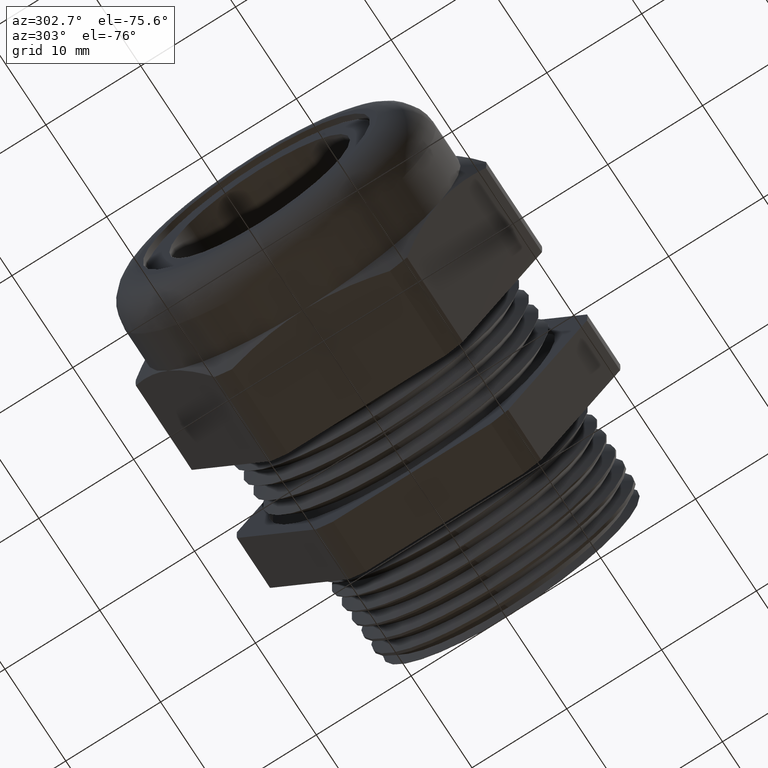
[diagram: clean part render]
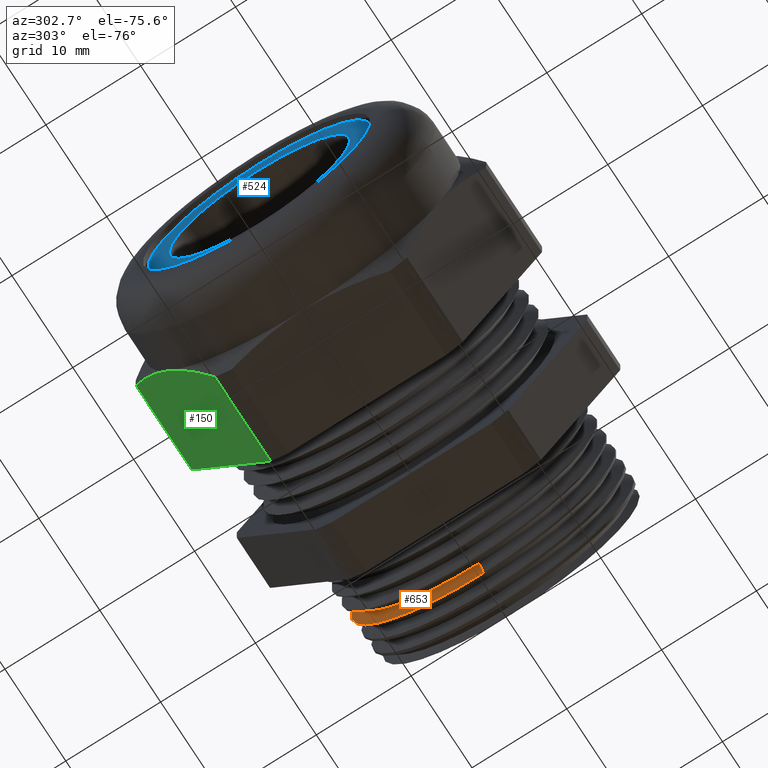
[diagram: same view with three faces highlighted in distinct colors, each labeled with its STEP entity id]
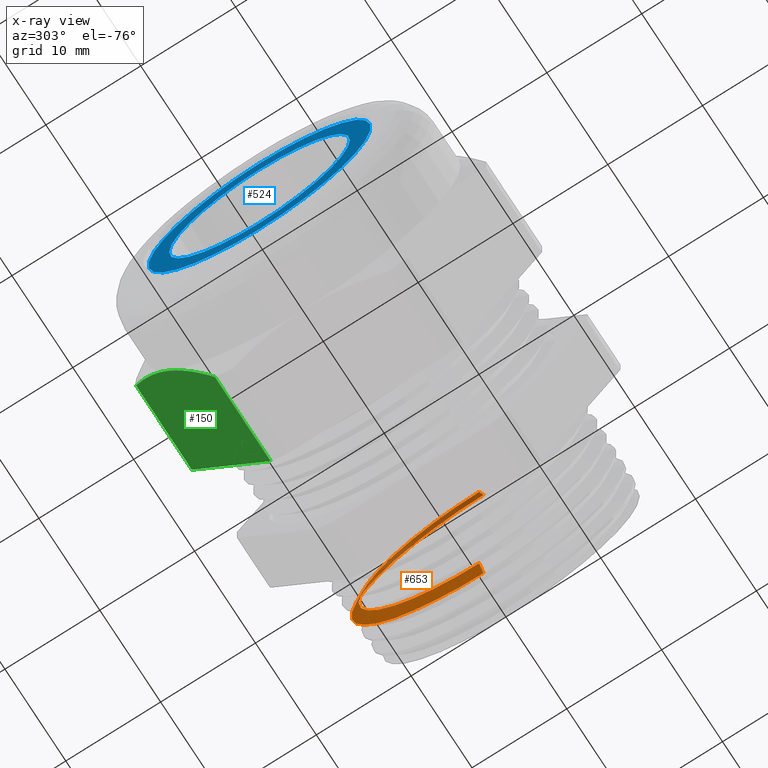
[diagram: x-ray of the same camera — body ghosted, the three highlighted faces saturated]
A machine part, auxiliary view with three faces highlighted in distinct colors.
The next image is the same camera in x-ray (body ghosted, the three faces saturated) — at least one of them is partly hidden behind the body in this view.
Their STEP definitions:

[orange] entity #653 — the highlighted conical surface has half-angle 60 deg.
#653 = ADVANCED_FACE ( 'NONE', ( #2206 ), #2205, .T. ) ;
#654 = EDGE_LOOP ( 'NONE', ( #655, #659, #690, #780 ) ) ;
#655 = ORIENTED_EDGE ( 'NONE', *, *, #656, .F. ) ;
#656 = EDGE_CURVE ( 'NONE', #657, #658, #2204, .T. ) ;
#657 = VERTEX_POINT ( 'NONE', #2258 ) ;
#658 = VERTEX_POINT ( 'NONE', #2257 ) ;
#659 = ORIENTED_EDGE ( 'NONE', *, *, #689, .T. ) ;
#660 = VERTEX_POINT ( 'NONE', #2256 ) ;
#689 = EDGE_CURVE ( 'NONE', #657, #660, #2326, .T. ) ;
#690 = ORIENTED_EDGE ( 'NONE', *, *, #691, .T. ) ;
#691 = EDGE_CURVE ( 'NONE', #660, #692, #2322, .T. ) ;
#692 = VERTEX_POINT ( 'NONE', #2317 ) ;
#780 = ORIENTED_EDGE ( 'NONE', *, *, #791, .F. ) ;
#791 = EDGE_CURVE ( 'NONE', #658, #692, #2453, .T. ) ;
#2198 = CARTESIAN_POINT ( 'NONE',  ( 0.2204866412847641400, 0.0000000000000000000, 0.0000000000000000000 ) ) ;
#2199 = AXIS2_PLACEMENT_3D ( 'NONE', #2198, #2260, #2259 ) ;
#2200 = DIRECTION ( 'NONE',  ( 0.0000000000000000000, 0.0000000000000000000, -1.000000000000000000 ) ) ;
#2201 = DIRECTION ( 'NONE',  ( 1.000000000000000000, 0.0000000000000000000, 0.0000000000000000000 ) ) ;
#2202 = CARTESIAN_POINT ( 'NONE',  ( 0.2204866412847641400, 0.0000000000000000000, 0.0000000000000000000 ) ) ;
#2203 = AXIS2_PLACEMENT_3D ( 'NONE', #2202, #2201, #2200 ) ;
#2204 = CIRCLE ( 'NONE', #2199, 0.5004635375350919800 ) ;
#2205 = CONICAL_SURFACE ( 'NONE', #2203, 0.5004635375350919800, 1.047197551196596500 ) ;
#2206 = FACE_OUTER_BOUND ( 'NONE', #654, .T. ) ;
#2256 = CARTESIAN_POINT ( 'NONE',  ( 0.2482205725359209200, 0.0000000000000000000, 0.5485001155557157600 ) ) ;
#2257 = CARTESIAN_POINT ( 'NONE',  ( 0.2204866412847641400, 6.432080283413133600E-017, -0.5004635375350919800 ) ) ;
#2258 = CARTESIAN_POINT ( 'NONE',  ( 0.2204866412847641400, 0.0000000000000000000, 0.5004635375350919800 ) ) ;
#2259 = DIRECTION ( 'NONE',  ( 0.0000000000000000000, 0.0000000000000000000, 1.000000000000000000 ) ) ;
#2260 = DIRECTION ( 'NONE',  ( -1.000000000000000000, 0.0000000000000000000, 0.0000000000000000000 ) ) ;
#2317 = CARTESIAN_POINT ( 'NONE',  ( 0.2482205725359209200, 6.717189108472605500E-017, -0.5485001155557157600 ) ) ;
#2318 = DIRECTION ( 'NONE',  ( 0.0000000000000000000, 0.0000000000000000000, -1.000000000000000000 ) ) ;
#2319 = DIRECTION ( 'NONE',  ( -1.000000000000000000, 0.0000000000000000000, 0.0000000000000000000 ) ) ;
#2320 = CARTESIAN_POINT ( 'NONE',  ( 0.2482205725359209200, 0.0000000000000000000, 0.0000000000000000000 ) ) ;
#2321 = AXIS2_PLACEMENT_3D ( 'NONE', #2320, #2319, #2318 ) ;
#2322 = CIRCLE ( 'NONE', #2321, 0.5485001155557156500 ) ;
#2323 = DIRECTION ( 'NONE',  ( 0.5000000000000010000, 1.060575238724906100E-016, 0.8660254037844379300 ) ) ;
#2324 = VECTOR ( 'NONE', #2323, 39.37007874015748900 ) ;
#2325 = CARTESIAN_POINT ( 'NONE',  ( 0.2204866412847641400, 6.128910693323116700E-017, 0.5004635375350919800 ) ) ;
#2326 = LINE ( 'NONE', #2325, #2324 ) ;
#2452 = CARTESIAN_POINT ( 'NONE',  ( 0.2204866412847641400, 0.0000000000000000000, -0.5004635375350919800 ) ) ;
#2453 = LINE ( 'NONE', #2452, #2513 ) ;
#2512 = DIRECTION ( 'NONE',  ( 0.5000000000000010000, 0.0000000000000000000, -0.8660254037844379300 ) ) ;
#2513 = VECTOR ( 'NONE', #2512, 39.37007874015748900 ) ;

[blue] entity #524 — the highlighted planar face has unit normal (-1, 0, 0).
#512 = VERTEX_POINT ( 'NONE', #1966 ) ;
#524 = ADVANCED_FACE ( 'NONE', ( #1953, #1952 ), #1958, .T. ) ;
#525 = EDGE_LOOP ( 'NONE', ( #526, #527 ) ) ;
#526 = ORIENTED_EDGE ( 'NONE', *, *, #552, .T. ) ;
#527 = ORIENTED_EDGE ( 'NONE', *, *, #528, .T. ) ;
#528 = EDGE_CURVE ( 'NONE', #512, #553, #1947, .T. ) ;
#529 = EDGE_LOOP ( 'NONE', ( #530, #531 ) ) ;
#530 = ORIENTED_EDGE ( 'NONE', *, *, #579, .T. ) ;
#531 = ORIENTED_EDGE ( 'NONE', *, *, #620, .T. ) ;
#552 = EDGE_CURVE ( 'NONE', #553, #512, #2031, .T. ) ;
#553 = VERTEX_POINT ( 'NONE', #2026 ) ;
#579 = EDGE_CURVE ( 'NONE', #622, #621, #2045, .T. ) ;
#620 = EDGE_CURVE ( 'NONE', #621, #622, #2150, .T. ) ;
#621 = VERTEX_POINT ( 'NONE', #2141 ) ;
#622 = VERTEX_POINT ( 'NONE', #2140 ) ;
#1943 = DIRECTION ( 'NONE',  ( 0.0000000000000000000, 0.0000000000000000000, 1.000000000000000000 ) ) ;
#1944 = DIRECTION ( 'NONE',  ( -1.000000000000000000, 0.0000000000000000000, 0.0000000000000000000 ) ) ;
#1945 = CARTESIAN_POINT ( 'NONE',  ( -1.200000000000000000, 0.0000000000000000000, 0.0000000000000000000 ) ) ;
#1946 = AXIS2_PLACEMENT_3D ( 'NONE', #1945, #1944, #1943 ) ;
#1947 = CIRCLE ( 'NONE', #1946, 0.4617500000000000500 ) ;
#1948 = DIRECTION ( 'NONE',  ( 0.0000000000000000000, 0.0000000000000000000, 1.000000000000000000 ) ) ;
#1949 = DIRECTION ( 'NONE',  ( -1.000000000000000000, 0.0000000000000000000, 0.0000000000000000000 ) ) ;
#1950 = CARTESIAN_POINT ( 'NONE',  ( -1.200000000000000000, 0.4717500000000000000, 0.0000000000000000000 ) ) ;
#1951 = AXIS2_PLACEMENT_3D ( 'NONE', #1950, #1949, #1948 ) ;
#1952 = FACE_BOUND ( 'NONE', #529, .T. ) ;
#1953 = FACE_OUTER_BOUND ( 'NONE', #525, .T. ) ;
#1958 = PLANE ( 'NONE',  #1951 ) ;
#1966 = CARTESIAN_POINT ( 'NONE',  ( -1.200000000000000000, 5.716038935020271700E-017, -0.4617500000000000500 ) ) ;
#2026 = CARTESIAN_POINT ( 'NONE',  ( -1.200000000000000000, 0.0000000000000000000, 0.4617500000000000500 ) ) ;
#2027 = DIRECTION ( 'NONE',  ( 0.0000000000000000000, 0.0000000000000000000, 1.000000000000000000 ) ) ;
#2028 = DIRECTION ( 'NONE',  ( -1.000000000000000000, 0.0000000000000000000, 0.0000000000000000000 ) ) ;
#2029 = CARTESIAN_POINT ( 'NONE',  ( -1.200000000000000000, 0.0000000000000000000, 0.0000000000000000000 ) ) ;
#2030 = AXIS2_PLACEMENT_3D ( 'NONE', #2029, #2028, #2027 ) ;
#2031 = CIRCLE ( 'NONE', #2030, 0.4617500000000000500 ) ;
#2037 = DIRECTION ( 'NONE',  ( 0.0000000000000000000, 0.0000000000000000000, -1.000000000000000000 ) ) ;
#2038 = DIRECTION ( 'NONE',  ( 1.000000000000000000, 0.0000000000000000000, 0.0000000000000000000 ) ) ;
#2039 = CARTESIAN_POINT ( 'NONE',  ( -1.200000000000000000, 0.0000000000000000000, 0.0000000000000000000 ) ) ;
#2040 = AXIS2_PLACEMENT_3D ( 'NONE', #2039, #2038, #2037 ) ;
#2045 = CIRCLE ( 'NONE', #2040, 0.3750000000000000600 ) ;
#2140 = CARTESIAN_POINT ( 'NONE',  ( -1.200000000000000000, 0.0000000000000000000, -0.3750000000000000600 ) ) ;
#2141 = CARTESIAN_POINT ( 'NONE',  ( -1.200000000000000000, 4.592425496802575500E-017, 0.3750000000000000600 ) ) ;
#2142 = DIRECTION ( 'NONE',  ( 0.0000000000000000000, 0.0000000000000000000, -1.000000000000000000 ) ) ;
#2143 = DIRECTION ( 'NONE',  ( 1.000000000000000000, 0.0000000000000000000, 0.0000000000000000000 ) ) ;
#2144 = CARTESIAN_POINT ( 'NONE',  ( -1.200000000000000000, 0.0000000000000000000, 0.0000000000000000000 ) ) ;
#2145 = AXIS2_PLACEMENT_3D ( 'NONE', #2144, #2143, #2142 ) ;
#2150 = CIRCLE ( 'NONE', #2145, 0.3750000000000000600 ) ;

[green] entity #150 — the highlighted planar face has unit normal (0, 0.866, -0.5).
#7 = VERTEX_POINT ( 'NONE', #1125 ) ;
#150 = ADVANCED_FACE ( 'NONE', ( #1401 ), #1400, .T. ) ;
#151 = EDGE_LOOP ( 'NONE', ( #152, #153, #155, #157, #158 ) ) ;
#152 = ORIENTED_EDGE ( 'NONE', *, *, #3579, .F. ) ;
#153 = ORIENTED_EDGE ( 'NONE', *, *, #154, .T. ) ;
#154 = EDGE_CURVE ( 'NONE', #3587, #874, #1395, .T. ) ;
#155 = ORIENTED_EDGE ( 'NONE', *, *, #156, .T. ) ;
#156 = EDGE_CURVE ( 'NONE', #874, #7, #1444, .T. ) ;
#157 = ORIENTED_EDGE ( 'NONE', *, *, #3595, .T. ) ;
#158 = ORIENTED_EDGE ( 'NONE', *, *, #159, .T. ) ;
#159 = EDGE_CURVE ( 'NONE', #3596, #3578, #1445, .T. ) ;
#874 = VERTEX_POINT ( 'NONE', #2666 ) ;
#1125 = CARTESIAN_POINT ( 'NONE',  ( -0.8674666790032095100, 0.7268402752278256800, -0.04107571431805968200 ) ) ;
#1395 = B_SPLINE_CURVE_WITH_KNOTS ( 'NONE', 3,
 ( #1451, #1450, #1449, #1448, #1447, #1446 ),
 .UNSPECIFIED., .F., .F.,
 ( 4, 2, 4 ),
 ( 2.361308568637535800E-007, 0.004201502711991004500, 0.008402769293125146600 ),
 .UNSPECIFIED. ) ;
#1396 = DIRECTION ( 'NONE',  ( 0.0000000000000000000, 0.5000000000000003300, 0.8660254037844383700 ) ) ;
#1397 = DIRECTION ( 'NONE',  ( 0.0000000000000000000, 0.8660254037844384900, -0.5000000000000004400 ) ) ;
#1398 = CARTESIAN_POINT ( 'NONE',  ( -2.992185896283379200, 0.3989927496919443200, -0.6089242856819405700 ) ) ;
#1399 = AXIS2_PLACEMENT_3D ( 'NONE', #1398, #1397, #1396 ) ;
#1400 = PLANE ( 'NONE',  #1399 ) ;
#1401 = FACE_OUTER_BOUND ( 'NONE', #151, .T. ) ;
#1433 = VECTOR ( 'NONE', #1442, 39.37007874015748100 ) ;
#1434 = CARTESIAN_POINT ( 'NONE',  ( -0.8674666790032095100, 0.7268402752278256800, -0.04107571431805968200 ) ) ;
#1435 = CARTESIAN_POINT ( 'NONE',  ( -0.8814205714001800400, 0.7000062718228488000, -0.08755357158595600300 ) ) ;
#1436 = CARTESIAN_POINT ( 'NONE',  ( -0.8927551590989980500, 0.6729577337251736500, -0.1344030138415915600 ) ) ;
#1437 = CARTESIAN_POINT ( 'NONE',  ( -0.9044328033704853700, 0.6319488438240191700, -0.2054324947123893100 ) ) ;
#1438 = CARTESIAN_POINT ( 'NONE',  ( -0.9074375322794259200, 0.6182064968433950100, -0.2292349378980709800 ) ) ;
#1439 = CARTESIAN_POINT ( 'NONE',  ( -0.9114778356147181800, 0.5905605188772369300, -0.2771191763603865800 ) ) ;
#1440 = CARTESIAN_POINT ( 'NONE',  ( -0.9124999999999998700, 0.5766899915409090500, -0.3011436344346790600 ) ) ;
#1441 = CARTESIAN_POINT ( 'NONE',  ( -0.9125000000000002000, 0.5629165124598849400, -0.3250000000000001800 ) ) ;
#1442 = DIRECTION ( 'NONE',  ( 0.0000000000000000000, -0.5000000000000003300, -0.8660254037844383700 ) ) ;
#1443 = CARTESIAN_POINT ( 'NONE',  ( -0.5058333333333334700, 0.7113165124598851400, -0.06796366015677866900 ) ) ;
#1444 = B_SPLINE_CURVE_WITH_KNOTS ( 'NONE', 3,
 ( #1441, #1440, #1439, #1438, #1437, #1436, #1435, #1434 ),
 .UNSPECIFIED., .F., .F.,
 ( 4, 2, 2, 4 ),
 ( 0.008402769293125146600, 0.01048919587064709100, 0.01257562244816903500, 0.01674847560321292300 ),
 .UNSPECIFIED. ) ;
#1445 = LINE ( 'NONE', #1443, #1433 ) ;
#1446 = CARTESIAN_POINT ( 'NONE',  ( -0.9125000000000002000, 0.5629165124598849400, -0.3250000000000001800 ) ) ;
#1447 = CARTESIAN_POINT ( 'NONE',  ( -0.9125000000000003100, 0.5351819839639028200, -0.3730376124790082400 ) ) ;
#1448 = CARTESIAN_POINT ( 'NONE',  ( -0.9083465192945222600, 0.5076765033783839900, -0.4206785023397256500 ) ) ;
#1449 = CARTESIAN_POINT ( 'NONE',  ( -0.8928224553762588200, 0.4530635366525173100, -0.5152709354609956700 ) ) ;
#1450 = CARTESIAN_POINT ( 'NONE',  ( -0.8814868053153368500, 0.4259541240880422300, -0.5622258153860121300 ) ) ;
#1451 = CARTESIAN_POINT ( 'NONE',  ( -0.8674666790032095100, 0.3989927496919443200, -0.6089242856819405700 ) ) ;
#2666 = CARTESIAN_POINT ( 'NONE',  ( -0.9125000000000002000, 0.5629165124598849400, -0.3250000000000001800 ) ) ;
#3282 = DIRECTION ( 'NONE',  ( 1.000000000000000000, 0.0000000000000000000, 0.0000000000000000000 ) ) ;
#3283 = VECTOR ( 'NONE', #3282, 39.37007874015748100 ) ;
#3284 = CARTESIAN_POINT ( 'NONE',  ( -2.992185896283379200, 0.3989927496919443200, -0.6089242856819405700 ) ) ;
#3285 = LINE ( 'NONE', #3284, #3283 ) ;
#3286 = CARTESIAN_POINT ( 'NONE',  ( -0.5058333333333336900, 0.3989927496919443200, -0.6089242856819405700 ) ) ;
#3310 = CARTESIAN_POINT ( 'NONE',  ( -0.5058333333333336900, 0.7268402752278256800, -0.04107571431805962700 ) ) ;
#3311 = DIRECTION ( 'NONE',  ( 1.000000000000000000, 0.0000000000000000000, 0.0000000000000000000 ) ) ;
#3312 = VECTOR ( 'NONE', #3311, 39.37007874015748100 ) ;
#3313 = CARTESIAN_POINT ( 'NONE',  ( -2.992185896283379200, 0.7268402752278256800, -0.04107571431805962700 ) ) ;
#3314 = LINE ( 'NONE', #3313, #3312 ) ;
#3331 = CARTESIAN_POINT ( 'NONE',  ( -0.8674666790032095100, 0.3989927496919443200, -0.6089242856819405700 ) ) ;
#3578 = VERTEX_POINT ( 'NONE', #3286 ) ;
#3579 = EDGE_CURVE ( 'NONE', #3587, #3578, #3285, .T. ) ;
#3587 = VERTEX_POINT ( 'NONE', #3331 ) ;
#3595 = EDGE_CURVE ( 'NONE', #7, #3596, #3314, .T. ) ;
#3596 = VERTEX_POINT ( 'NONE', #3310 ) ;